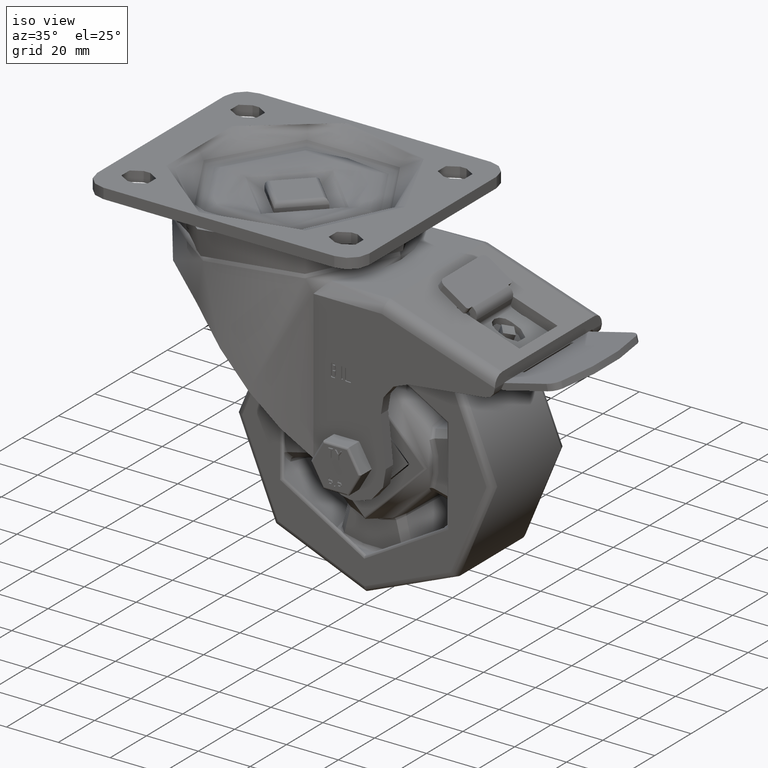
[diagram: clean part render]
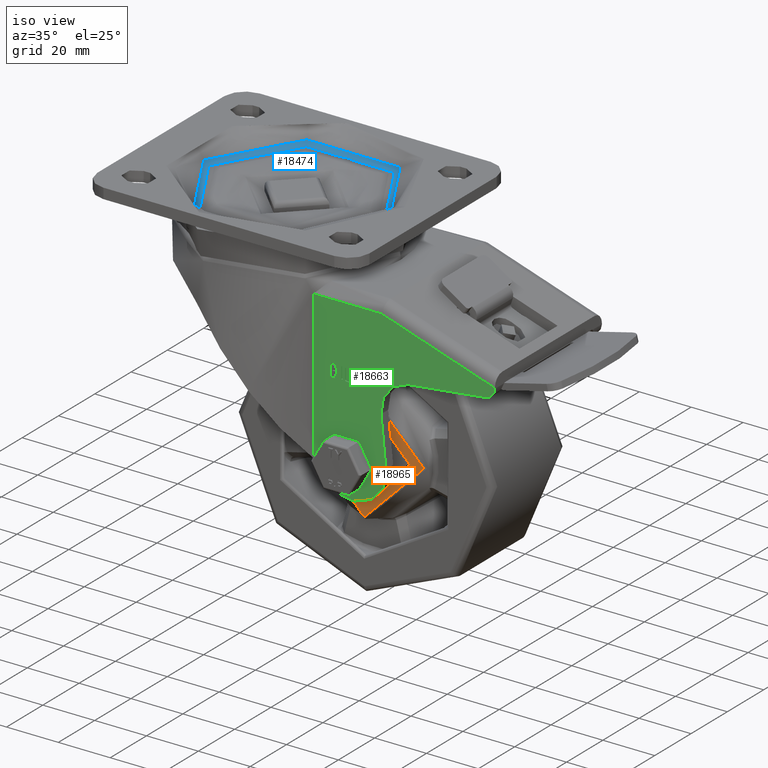
[diagram: same view with three faces highlighted in distinct colors, each labeled with its STEP entity id]
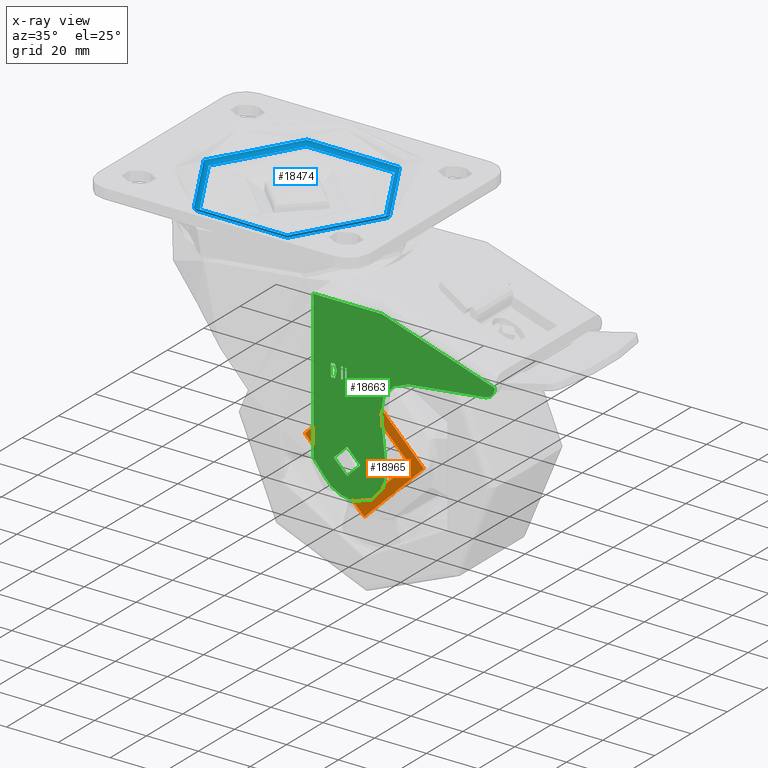
[diagram: x-ray of the same camera — body ghosted, the three highlighted faces saturated]
A machine part, iso view with three faces highlighted in distinct colors.
The next image is the same camera in x-ray (body ghosted, the three faces saturated) — at least one of them is partly hidden behind the body in this view.
Their STEP definitions:

[orange] entity #18965 — the highlighted planar face has unit normal (0, -1, 0).
#1410=FACE_BOUND('',#3794,.T.);
#1778=PLANE('',#20800);
#2616=FACE_OUTER_BOUND('',#3793,.T.);
#3793=EDGE_LOOP('',(#15254));
#3794=EDGE_LOOP('',(#15255));
#7413=CIRCLE('',#20574,17.5);
#7453=CIRCLE('',#20625,23.);
#8628=VERTEX_POINT('',#29966);
#8679=VERTEX_POINT('',#30368);
#10813=EDGE_CURVE('',#8628,#8628,#7413,.T.);
#10874=EDGE_CURVE('',#8679,#8679,#7453,.T.);
#15254=ORIENTED_EDGE('',*,*,#10874,.F.);
#15255=ORIENTED_EDGE('',*,*,#10813,.T.);
#18965=ADVANCED_FACE('',(#2616,#1410),#1778,.T.);
#20574=AXIS2_PLACEMENT_3D('',#29967,#23790,#23791);
#20625=AXIS2_PLACEMENT_3D('',#30370,#23897,#23898);
#20800=AXIS2_PLACEMENT_3D('',#43964,#24258,#24259);
#23790=DIRECTION('center_axis',(0.,1.,0.));
#23791=DIRECTION('ref_axis',(0.,0.,1.));
#23897=DIRECTION('center_axis',(0.,1.,0.));
#23898=DIRECTION('ref_axis',(0.,0.,1.));
#24258=DIRECTION('center_axis',(0.,-1.,0.));
#24259=DIRECTION('ref_axis',(0.,0.,-1.));
#29966=CARTESIAN_POINT('',(2.14313189850787E-15,-20.,-17.5));
#29967=CARTESIAN_POINT('Origin',(0.,-20.,0.));
#30368=CARTESIAN_POINT('',(-2.81668763803891E-15,-20.,-23.));
#30370=CARTESIAN_POINT('Origin',(0.,-20.,0.));
#43964=CARTESIAN_POINT('Origin',(0.,-20.,20.75));

[blue] entity #18474 — the highlighted toroidal blend (fillet) surface has major radius 34.004 mm and minor (blend) radius 2 mm.
#2057=TOROIDAL_SURFACE('',#19893,34.0040333075852,2.);
#2125=FACE_OUTER_BOUND('',#3265,.T.);
#3265=EDGE_LOOP('',(#12634,#12635,#12636,#12637));
#7143=CIRCLE('',#19879,35.9405249806889);
#7152=CIRCLE('',#19894,2.);
#7153=CIRCLE('',#19895,34.0040333075852);
#7963=VERTEX_POINT('',#26558);
#7970=VERTEX_POINT('',#26584);
#9780=EDGE_CURVE('',#7963,#7963,#7143,.T.);
#9792=EDGE_CURVE('',#7963,#7970,#7152,.T.);
#9793=EDGE_CURVE('',#7970,#7970,#7153,.T.);
#12634=ORIENTED_EDGE('',*,*,#9780,.T.);
#12635=ORIENTED_EDGE('',*,*,#9792,.T.);
#12636=ORIENTED_EDGE('',*,*,#9793,.T.);
#12637=ORIENTED_EDGE('',*,*,#9792,.F.);
#18474=ADVANCED_FACE('',(#2125),#2057,.F.);
#19879=AXIS2_PLACEMENT_3D('',#26560,#21717,#21718);
#19893=AXIS2_PLACEMENT_3D('',#26583,#21748,#21749);
#19894=AXIS2_PLACEMENT_3D('',#26585,#21750,#21751);
#19895=AXIS2_PLACEMENT_3D('',#26586,#21752,#21753);
#21717=DIRECTION('center_axis',(0.,0.,1.));
#21718=DIRECTION('ref_axis',(1.,1.22464679914735E-16,0.));
#21748=DIRECTION('center_axis',(0.,0.,-1.));
#21749=DIRECTION('ref_axis',(-1.,0.,0.));
#21750=DIRECTION('center_axis',(1.22464679914735E-16,1.,0.));
#21751=DIRECTION('ref_axis',(1.,-1.22464679914735E-16,0.));
#21752=DIRECTION('center_axis',(0.,0.,-1.));
#21753=DIRECTION('ref_axis',(1.,1.22464679914735E-16,0.));
#26558=CARTESIAN_POINT('',(35.9405249806889,4.40144488772761E-15,-4.5));
#26560=CARTESIAN_POINT('Origin',(0.,0.,-4.5));
#26583=CARTESIAN_POINT('Origin',(0.,0.,-4.));
#26584=CARTESIAN_POINT('',(34.0040333075852,-4.16429305482342E-15,-6.));
#26585=CARTESIAN_POINT('Origin',(34.0040333075852,-4.16429305482342E-15,
-4.));
#26586=CARTESIAN_POINT('Origin',(0.,0.,-6.));

[green] entity #18663 — the highlighted planar face has unit normal (0, 1, 0).
#620=B_SPLINE_CURVE_WITH_KNOTS('',2,(#27906,#27907,#27908,#27909,#27910,
#27911),.UNSPECIFIED.,.F.,.F.,(3,1,1,1,3),(0.,1.,2.00000000000004,2.99231678487006,
3.98463356974007),.UNSPECIFIED.);
#621=B_SPLINE_CURVE_WITH_KNOTS('',2,(#27919,#27920,#27921,#27922,#27923,
#27924),.UNSPECIFIED.,.F.,.F.,(3,1,1,1,3),(0.,1.,2.,3.00850546780066,4.01701093560129),
 .UNSPECIFIED.);
#622=B_SPLINE_CURVE_WITH_KNOTS('',2,(#27928,#27929,#27930,#27931),
 .UNSPECIFIED.,.F.,.F.,(3,1,3),(0.,1.,2.),.UNSPECIFIED.);
#623=B_SPLINE_CURVE_WITH_KNOTS('',2,(#27935,#27936,#27937,#27938),
 .UNSPECIFIED.,.F.,.F.,(3,1,3),(0.,1.,2.00000000000004),.UNSPECIFIED.);
#624=B_SPLINE_CURVE_WITH_KNOTS('',2,(#27940,#27941,#27942,#27943),
 .UNSPECIFIED.,.F.,.F.,(3,1,3),(0.,1.,2.),.UNSPECIFIED.);
#625=B_SPLINE_CURVE_WITH_KNOTS('',2,(#27947,#27948,#27949,#27950,#27951,
#27952),.UNSPECIFIED.,.F.,.F.,(3,1,1,1,3),(0.,1.,2.,3.00768321513002,4.01536643025996),
 .UNSPECIFIED.);
#626=B_SPLINE_CURVE_WITH_KNOTS('',2,(#27956,#27957,#27958,#27959,#27960,
#27961,#27962,#27963),.UNSPECIFIED.,.F.,.F.,(3,1,1,1,1,1,3),(0.,1.,1.99999999999999,
2.99999999999996,3.99999999999995,5.16362566215414,6.32725132430829),
 .UNSPECIFIED.);
#627=B_SPLINE_CURVE_WITH_KNOTS('',2,(#27965,#27966,#27967,#27968,#27969,
#27970,#27971,#27972),.UNSPECIFIED.,.F.,.F.,(3,1,1,1,1,1,3),(0.,1.,2.,2.76418305597581,
3.52836611195163,4.29254916792745,5.05673222390326),.UNSPECIFIED.);
#628=B_SPLINE_CURVE_WITH_KNOTS('',2,(#27976,#27977,#27978,#27979),
 .UNSPECIFIED.,.F.,.F.,(3,1,3),(0.,1.,1.99999999999992),.UNSPECIFIED.);
#629=B_SPLINE_CURVE_WITH_KNOTS('',2,(#27983,#27984,#27985,#27986),
 .UNSPECIFIED.,.F.,.F.,(3,1,3),(0.,1.,2.00000000000004),.UNSPECIFIED.);
#1391=FACE_BOUND('',#3473,.T.);
#1392=FACE_BOUND('',#3474,.T.);
#1393=FACE_BOUND('',#3475,.T.);
#1394=FACE_BOUND('',#3476,.T.);
#1658=PLANE('',#20275);
#2314=FACE_OUTER_BOUND('',#3472,.T.);
#3472=EDGE_LOOP('',(#13706,#13707,#13708,#13709,#13710,#13711,#13712,#13713,
#13714,#13715,#13716,#13717));
#3473=EDGE_LOOP('',(#13718,#13719,#13720,#13721,#13722,#13723,#13724,#13725));
#3474=EDGE_LOOP('',(#13726,#13727,#13728,#13729,#13730));
#3475=EDGE_LOOP('',(#13731,#13732,#13733,#13734,#13735,#13736,#13737));
#3476=EDGE_LOOP('',(#13738));
#4861=LINE('',#27744,#6150);
#4866=LINE('',#27798,#6155);
#4868=LINE('',#27803,#6157);
#4899=LINE('',#27883,#6188);
#4905=LINE('',#27895,#6194);
#4907=LINE('',#27899,#6196);
#4908=LINE('',#27902,#6197);
#4909=LINE('',#27903,#6198);
#4910=LINE('',#27913,#6199);
#4911=LINE('',#27915,#6200);
#4912=LINE('',#27917,#6201);
#4913=LINE('',#27926,#6202);
#4914=LINE('',#27932,#6203);
#4915=LINE('',#27945,#6204);
#4916=LINE('',#27953,#6205);
#4917=LINE('',#27974,#6206);
#4918=LINE('',#27981,#6207);
#4919=LINE('',#27987,#6208);
#6150=VECTOR('',#22739,1000.);
#6155=VECTOR('',#22760,1000.);
#6157=VECTOR('',#22766,1000.);
#6188=VECTOR('',#22843,1000.);
#6194=VECTOR('',#22857,1000.);
#6196=VECTOR('',#22861,999.999999999999);
#6197=VECTOR('',#22864,1000.);
#6198=VECTOR('',#22865,1000.);
#6199=VECTOR('',#22866,1000.);
#6200=VECTOR('',#22867,1000.);
#6201=VECTOR('',#22868,1000.);
#6202=VECTOR('',#22869,1000.);
#6203=VECTOR('',#22870,1000.);
#6204=VECTOR('',#22871,1000.);
#6205=VECTOR('',#22872,1000.);
#6206=VECTOR('',#22873,1000.);
#6207=VECTOR('',#22874,1000.);
#6208=VECTOR('',#22875,1000.);
#7289=CIRCLE('',#20205,5.1);
#7298=CIRCLE('',#20217,13.0326199722956);
#7312=CIRCLE('',#20257,12.);
#7313=CIRCLE('',#20259,4.);
#7318=CIRCLE('',#20276,13.0326199722956);
#8252=VERTEX_POINT('',#27467);
#8262=VERTEX_POINT('',#27491);
#8263=VERTEX_POINT('',#27493);
#8287=VERTEX_POINT('',#27741);
#8288=VERTEX_POINT('',#27743);
#8299=VERTEX_POINT('',#27794);
#8301=VERTEX_POINT('',#27797);
#8313=VERTEX_POINT('',#27830);
#8314=VERTEX_POINT('',#27832);
#8315=VERTEX_POINT('',#27836);
#8316=VERTEX_POINT('',#27837);
#8331=VERTEX_POINT('',#27898);
#8332=VERTEX_POINT('',#27900);
#8333=VERTEX_POINT('',#27904);
#8334=VERTEX_POINT('',#27905);
#8335=VERTEX_POINT('',#27912);
#8336=VERTEX_POINT('',#27914);
#8337=VERTEX_POINT('',#27916);
#8338=VERTEX_POINT('',#27918);
#8339=VERTEX_POINT('',#27925);
#8340=VERTEX_POINT('',#27927);
#8341=VERTEX_POINT('',#27933);
#8342=VERTEX_POINT('',#27934);
#8343=VERTEX_POINT('',#27939);
#8344=VERTEX_POINT('',#27944);
#8345=VERTEX_POINT('',#27946);
#8346=VERTEX_POINT('',#27954);
#8347=VERTEX_POINT('',#27955);
#8348=VERTEX_POINT('',#27964);
#8349=VERTEX_POINT('',#27973);
#8350=VERTEX_POINT('',#27975);
#8351=VERTEX_POINT('',#27980);
#8352=VERTEX_POINT('',#27982);
#10233=EDGE_CURVE('',#8252,#8252,#7289,.T.);
#10244=EDGE_CURVE('',#8263,#8262,#7298,.T.);
#10275=EDGE_CURVE('',#8287,#8288,#4861,.T.);
#10288=EDGE_CURVE('',#8299,#8301,#4866,.T.);
#10291=EDGE_CURVE('',#8288,#8299,#4868,.T.);
#10305=EDGE_CURVE('',#8313,#8314,#7312,.T.);
#10307=EDGE_CURVE('',#8315,#8316,#7313,.T.);
#10332=EDGE_CURVE('',#8301,#8315,#4899,.T.);
#10339=EDGE_CURVE('',#8316,#8313,#4905,.T.);
#10341=EDGE_CURVE('',#8287,#8331,#4907,.T.);
#10342=EDGE_CURVE('',#8331,#8332,#7318,.T.);
#10343=EDGE_CURVE('',#8263,#8332,#4908,.T.);
#10344=EDGE_CURVE('',#8314,#8262,#4909,.T.);
#10345=EDGE_CURVE('',#8333,#8334,#620,.T.);
#10346=EDGE_CURVE('',#8334,#8335,#4910,.T.);
#10347=EDGE_CURVE('',#8335,#8336,#4911,.T.);
#10348=EDGE_CURVE('',#8336,#8337,#4912,.T.);
#10349=EDGE_CURVE('',#8337,#8338,#621,.T.);
#10350=EDGE_CURVE('',#8338,#8339,#4913,.T.);
#10351=EDGE_CURVE('',#8339,#8340,#622,.T.);
#10352=EDGE_CURVE('',#8340,#8333,#4914,.T.);
#10353=EDGE_CURVE('',#8341,#8342,#623,.T.);
#10354=EDGE_CURVE('',#8342,#8343,#624,.T.);
#10355=EDGE_CURVE('',#8343,#8344,#4915,.T.);
#10356=EDGE_CURVE('',#8344,#8345,#625,.T.);
#10357=EDGE_CURVE('',#8345,#8341,#4916,.T.);
#10358=EDGE_CURVE('',#8346,#8347,#626,.T.);
#10359=EDGE_CURVE('',#8347,#8348,#627,.T.);
#10360=EDGE_CURVE('',#8348,#8349,#4917,.T.);
#10361=EDGE_CURVE('',#8349,#8350,#628,.T.);
#10362=EDGE_CURVE('',#8350,#8351,#4918,.T.);
#10363=EDGE_CURVE('',#8351,#8352,#629,.T.);
#10364=EDGE_CURVE('',#8352,#8346,#4919,.T.);
#13706=ORIENTED_EDGE('',*,*,#10307,.F.);
#13707=ORIENTED_EDGE('',*,*,#10332,.F.);
#13708=ORIENTED_EDGE('',*,*,#10288,.F.);
#13709=ORIENTED_EDGE('',*,*,#10291,.F.);
#13710=ORIENTED_EDGE('',*,*,#10275,.F.);
#13711=ORIENTED_EDGE('',*,*,#10341,.T.);
#13712=ORIENTED_EDGE('',*,*,#10342,.T.);
#13713=ORIENTED_EDGE('',*,*,#10343,.F.);
#13714=ORIENTED_EDGE('',*,*,#10244,.T.);
#13715=ORIENTED_EDGE('',*,*,#10344,.F.);
#13716=ORIENTED_EDGE('',*,*,#10305,.F.);
#13717=ORIENTED_EDGE('',*,*,#10339,.F.);
#13718=ORIENTED_EDGE('',*,*,#10345,.T.);
#13719=ORIENTED_EDGE('',*,*,#10346,.T.);
#13720=ORIENTED_EDGE('',*,*,#10347,.T.);
#13721=ORIENTED_EDGE('',*,*,#10348,.T.);
#13722=ORIENTED_EDGE('',*,*,#10349,.T.);
#13723=ORIENTED_EDGE('',*,*,#10350,.T.);
#13724=ORIENTED_EDGE('',*,*,#10351,.T.);
#13725=ORIENTED_EDGE('',*,*,#10352,.T.);
#13726=ORIENTED_EDGE('',*,*,#10353,.T.);
#13727=ORIENTED_EDGE('',*,*,#10354,.T.);
#13728=ORIENTED_EDGE('',*,*,#10355,.T.);
#13729=ORIENTED_EDGE('',*,*,#10356,.T.);
#13730=ORIENTED_EDGE('',*,*,#10357,.T.);
#13731=ORIENTED_EDGE('',*,*,#10358,.T.);
#13732=ORIENTED_EDGE('',*,*,#10359,.T.);
#13733=ORIENTED_EDGE('',*,*,#10360,.T.);
#13734=ORIENTED_EDGE('',*,*,#10361,.T.);
#13735=ORIENTED_EDGE('',*,*,#10362,.T.);
#13736=ORIENTED_EDGE('',*,*,#10363,.T.);
#13737=ORIENTED_EDGE('',*,*,#10364,.T.);
#13738=ORIENTED_EDGE('',*,*,#10233,.T.);
#18663=ADVANCED_FACE('',(#2314,#1391,#1392,#1393,#1394),#1658,.F.);
#20205=AXIS2_PLACEMENT_3D('',#27469,#22663,#22664);
#20217=AXIS2_PLACEMENT_3D('',#27494,#22689,#22690);
#20257=AXIS2_PLACEMENT_3D('',#27833,#22793,#22794);
#20259=AXIS2_PLACEMENT_3D('',#27838,#22798,#22799);
#20275=AXIS2_PLACEMENT_3D('',#27897,#22859,#22860);
#20276=AXIS2_PLACEMENT_3D('',#27901,#22862,#22863);
#22663=DIRECTION('center_axis',(0.,1.,0.));
#22664=DIRECTION('ref_axis',(-1.,0.,0.));
#22689=DIRECTION('center_axis',(0.,-1.,0.));
#22690=DIRECTION('ref_axis',(-1.,0.,0.));
#22739=DIRECTION('',(2.89120579329468E-16,0.,1.));
#22760=DIRECTION('',(0.95087143148672,0.,-0.309586047460792));
#22766=DIRECTION('',(1.,0.,-8.16340459283203E-16));
#22793=DIRECTION('center_axis',(0.,-1.,0.));
#22794=DIRECTION('ref_axis',(-0.779590703875945,0.,0.626289337630945));
#22798=DIRECTION('center_axis',(0.,1.,0.));
#22799=DIRECTION('ref_axis',(0.74682690704559,0.,-0.665018474113854));
#22843=DIRECTION('',(0.,0.,-1.));
#22857=DIRECTION('',(-0.993307380301254,0.,-0.115500858174564));
#22859=DIRECTION('center_axis',(0.,1.,0.));
#22860=DIRECTION('ref_axis',(0.,0.,1.));
#22861=DIRECTION('',(0.637998163497771,0.,-0.770037884375484));
#22862=DIRECTION('center_axis',(0.,-1.,0.));
#22863=DIRECTION('ref_axis',(-1.,0.,0.));
#22864=DIRECTION('',(-1.,0.,0.));
#22865=DIRECTION('',(0.101294478618815,0.,-0.994856486434773));
#22866=DIRECTION('',(0.,0.,-1.));
#22867=DIRECTION('',(1.,0.,0.));
#22868=DIRECTION('',(-0.720320213491517,0.,-0.693641687065833));
#22869=DIRECTION('',(-1.,0.,0.));
#22870=DIRECTION('',(0.,0.,1.));
#22871=DIRECTION('',(0.,0.,-1.));
#22872=DIRECTION('',(0.,0.,1.));
#22873=DIRECTION('',(-1.,0.,0.));
#22874=DIRECTION('',(0.,0.,1.));
#22875=DIRECTION('',(1.,0.,0.));
#27467=CARTESIAN_POINT('',(45.1,-29.5,-78.));
#27469=CARTESIAN_POINT('Origin',(40.,-29.5,-78.));
#27491=CARTESIAN_POINT('',(54.9655865146776,-29.5,-76.6798675548692));
#27493=CARTESIAN_POINT('',(42.9215114444637,-29.5,-91.));
#27494=CARTESIAN_POINT('Origin',(42.,-29.5,-78.));
#27741=CARTESIAN_POINT('',(27.0138853184802,-29.5,-80.3299322808854));
#27743=CARTESIAN_POINT('',(27.0138853184802,-29.5,-23.));
#27744=CARTESIAN_POINT('',(27.0138853184802,-29.5,-55.));
#27794=CARTESIAN_POINT('',(53.3652353661771,-29.5,-23.));
#27797=CARTESIAN_POINT('',(97.,-29.5,-37.2066675551982));
#27798=CARTESIAN_POINT('',(36.3028538541666,-29.5,-17.4448060193454));
#27803=CARTESIAN_POINT('',(22.875,-29.5,-23.));
#27830=CARTESIAN_POINT('',(63.6176240123528,-29.5,-44.8816716264706));
#27832=CARTESIAN_POINT('',(53.0653564732303,-29.5,-58.0168939335114));
#27833=CARTESIAN_POINT('Origin',(65.0036343104476,-29.5,-56.8013601900857));
#27836=CARTESIAN_POINT('',(97.,-29.5,-37.4381654284813));
#27837=CARTESIAN_POINT('',(93.4620034326983,-29.5,-41.4113949496863));
#27838=CARTESIAN_POINT('Origin',(93.,-29.5,-37.4381654284813));
#27883=CARTESIAN_POINT('',(97.,-29.5,-33.));
#27895=CARTESIAN_POINT('',(54.,-29.5,-46.));
#27897=CARTESIAN_POINT('Origin',(0.,-29.5,0.));
#27898=CARTESIAN_POINT('',(31.7116967704934,-29.5,-86.0000000000001));
#27899=CARTESIAN_POINT('',(-6.79573293257634,-29.5,-39.5230955231535));
#27900=CARTESIAN_POINT('',(41.0784885555363,-29.5,-91.));
#27901=CARTESIAN_POINT('Origin',(42.,-29.5,-78.));
#27902=CARTESIAN_POINT('',(50.,-29.5,-91.));
#27903=CARTESIAN_POINT('',(49.5,-29.5,-23.));
#27904=CARTESIAN_POINT('',(39.2009712979391,-29.5,-45.5455689905274));
#27905=CARTESIAN_POINT('',(39.8221678950579,-29.5,-45.5455689905274));
#27906=CARTESIAN_POINT('Ctrl Pts',(39.2009712979391,-29.5,-45.5455689905274));
#27907=CARTESIAN_POINT('Ctrl Pts',(39.2009712979391,-29.5,-45.416719015366));
#27908=CARTESIAN_POINT('Ctrl Pts',(39.3802745766277,-29.5,-45.2374157366774));
#27909=CARTESIAN_POINT('Ctrl Pts',(39.6419331707658,-29.5,-45.2374157366774));
#27910=CARTESIAN_POINT('Ctrl Pts',(39.8221678950579,-29.5,-45.4177280814365));
#27911=CARTESIAN_POINT('Ctrl Pts',(39.8221678950579,-29.5,-45.5455689905274));
#27912=CARTESIAN_POINT('',(39.8221678950579,-29.5,-49.6211868494445));
#27913=CARTESIAN_POINT('',(39.8221678950579,-29.5,-22.7727844952637));
#27914=CARTESIAN_POINT('',(41.5269462110042,-29.5,-49.6211868494445));
#27915=CARTESIAN_POINT('',(19.9110839475289,-29.5,-49.6211868494445));
#27916=CARTESIAN_POINT('',(41.4934141692754,-29.5,-49.6534769637018));
#27917=CARTESIAN_POINT('',(43.150052752102,-29.5,-48.0581953654245));
#27918=CARTESIAN_POINT('',(41.4598821275467,-29.5,-50.2374157366774));
#27919=CARTESIAN_POINT('Ctrl Pts',(41.4934141692754,-29.5,-49.6534769637018));
#27920=CARTESIAN_POINT('Ctrl Pts',(41.5902068915805,-29.5,-49.6211868494445));
#27921=CARTESIAN_POINT('Ctrl Pts',(41.7705192363395,-29.5,-49.8014991942035));
#27922=CARTESIAN_POINT('Ctrl Pts',(41.7705192363395,-29.5,-50.0581124579889));
#27923=CARTESIAN_POINT('Ctrl Pts',(41.591215957651,-29.5,-50.2374157366774));
#27924=CARTESIAN_POINT('Ctrl Pts',(41.4598821275467,-29.5,-50.2374157366774));
#27925=CARTESIAN_POINT('',(39.511608406732,-29.5,-50.2374157366774));
#27926=CARTESIAN_POINT('',(20.7299410637733,-29.5,-50.2374157366774));
#27927=CARTESIAN_POINT('',(39.2009712979391,-29.5,-49.9292624828275));
#27928=CARTESIAN_POINT('Ctrl Pts',(39.511608406732,-29.5,-50.2374157366774));
#27929=CARTESIAN_POINT('Ctrl Pts',(39.3792655105571,-29.5,-50.2374157366774));
#27930=CARTESIAN_POINT('Ctrl Pts',(39.2009712979391,-29.5,-50.0591215240595));
#27931=CARTESIAN_POINT('Ctrl Pts',(39.2009712979391,-29.5,-49.9292624828275));
#27932=CARTESIAN_POINT('',(39.2009712979391,-29.5,-24.9646312414137));
#27933=CARTESIAN_POINT('',(37.7056906223306,-29.5,-45.5455689905274));
#27934=CARTESIAN_POINT('',(38.0163277311234,-29.5,-45.2374157366774));
#27935=CARTESIAN_POINT('Ctrl Pts',(37.7056906223306,-29.5,-45.5455689905274));
#27936=CARTESIAN_POINT('Ctrl Pts',(37.7056906223306,-29.5,-45.416719015366));
#27937=CARTESIAN_POINT('Ctrl Pts',(37.8849939010191,-29.5,-45.2374157366774));
#27938=CARTESIAN_POINT('Ctrl Pts',(38.0163277311234,-29.5,-45.2374157366774));
#27939=CARTESIAN_POINT('',(38.3268872194493,-29.5,-45.5455689905274));
#27940=CARTESIAN_POINT('Ctrl Pts',(38.0163277311234,-29.5,-45.2374157366774));
#27941=CARTESIAN_POINT('Ctrl Pts',(38.1466524951572,-29.5,-45.2374157366774));
#27942=CARTESIAN_POINT('Ctrl Pts',(38.3268872194493,-29.5,-45.4177280814365));
#27943=CARTESIAN_POINT('Ctrl Pts',(38.3268872194493,-29.5,-45.5455689905274));
#27944=CARTESIAN_POINT('',(38.3268872194493,-29.5,-49.9292624828275));
#27945=CARTESIAN_POINT('',(38.3268872194493,-29.5,-22.7727844952637));
#27946=CARTESIAN_POINT('',(37.7056906223306,-29.5,-49.9292624828275));
#27947=CARTESIAN_POINT('Ctrl Pts',(38.3268872194493,-29.5,-49.9292624828275));
#27948=CARTESIAN_POINT('Ctrl Pts',(38.3268872194493,-29.5,-50.0581124579889));
#27949=CARTESIAN_POINT('Ctrl Pts',(38.1476615612278,-29.5,-50.2374157366774));
#27950=CARTESIAN_POINT('Ctrl Pts',(37.8839848349486,-29.5,-50.2374157366774));
#27951=CARTESIAN_POINT('Ctrl Pts',(37.7056906223306,-29.5,-50.0591215240595));
#27952=CARTESIAN_POINT('Ctrl Pts',(37.7056906223306,-29.5,-49.9292624828275));
#27953=CARTESIAN_POINT('',(37.7056906223306,-29.5,-24.9646312414137));
#27954=CARTESIAN_POINT('',(35.2549019983862,-29.5,-45.2374157366774));
#27955=CARTESIAN_POINT('',(36.0866829223803,-29.5,-47.4586806398071));
#27956=CARTESIAN_POINT('Ctrl Pts',(35.2549019983862,-29.5,-45.2374157366774));
#27957=CARTESIAN_POINT('Ctrl Pts',(35.5202863749386,-29.5,-45.2374157366774));
#27958=CARTESIAN_POINT('Ctrl Pts',(35.9913649889476,-29.5,-45.4393841917197));
#27959=CARTESIAN_POINT('Ctrl Pts',(36.3384060967469,-29.5,-45.786425299519));
#27960=CARTESIAN_POINT('Ctrl Pts',(36.5396759675864,-29.5,-46.2559515041886));
#27961=CARTESIAN_POINT('Ctrl Pts',(36.5396759675864,-29.5,-46.8266171773133));
#27962=CARTESIAN_POINT('Ctrl Pts',(36.2827522219332,-29.5,-47.3403870481528));
#27963=CARTESIAN_POINT('Ctrl Pts',(36.0866829223803,-29.5,-47.4586806398071));
#27964=CARTESIAN_POINT('',(35.2549019983862,-29.5,-50.2374157366774));
#27965=CARTESIAN_POINT('Ctrl Pts',(36.0866829223803,-29.5,-47.4586806398071));
#27966=CARTESIAN_POINT('Ctrl Pts',(36.3867636476659,-29.5,-47.6147753988732));
#27967=CARTESIAN_POINT('Ctrl Pts',(36.7831713724548,-29.5,-48.3010955677753));
#27968=CARTESIAN_POINT('Ctrl Pts',(36.7831713724548,-29.5,-49.0252169040893));
#27969=CARTESIAN_POINT('Ctrl Pts',(36.5430136476659,-29.5,-49.5822989954951));
#27970=CARTESIAN_POINT('Ctrl Pts',(36.1278217698716,-29.5,-49.9974908732895));
#27971=CARTESIAN_POINT('Ctrl Pts',(35.5714382626684,-29.5,-50.2374157366774));
#27972=CARTESIAN_POINT('Ctrl Pts',(35.2549019983862,-29.5,-50.2374157366774));
#27973=CARTESIAN_POINT('',(34.0371921126436,-29.5,-50.2374157366774));
#27974=CARTESIAN_POINT('',(17.6274509991931,-29.5,-50.2374157366774));
#27975=CARTESIAN_POINT('',(33.7265550038507,-29.5,-49.9292624828275));
#27976=CARTESIAN_POINT('Ctrl Pts',(34.0371921126436,-29.5,-50.2374157366774));
#27977=CARTESIAN_POINT('Ctrl Pts',(33.9048492164687,-29.5,-50.2374157366774));
#27978=CARTESIAN_POINT('Ctrl Pts',(33.7265550038507,-29.5,-50.0591215240595));
#27979=CARTESIAN_POINT('Ctrl Pts',(33.7265550038507,-29.5,-49.9292624828275));
#27980=CARTESIAN_POINT('',(33.7265550038507,-29.5,-45.5455689905274));
#27981=CARTESIAN_POINT('',(33.7265550038507,-29.5,-24.9646312414137));
#27982=CARTESIAN_POINT('',(34.0371921126436,-29.5,-45.2374157366774));
#27983=CARTESIAN_POINT('Ctrl Pts',(33.7265550038507,-29.5,-45.5455689905274));
#27984=CARTESIAN_POINT('Ctrl Pts',(33.7265550038507,-29.5,-45.416719015366));
#27985=CARTESIAN_POINT('Ctrl Pts',(33.9058582825392,-29.5,-45.2374157366774));
#27986=CARTESIAN_POINT('Ctrl Pts',(34.0371921126436,-29.5,-45.2374157366774));
#27987=CARTESIAN_POINT('',(17.0185960563218,-29.5,-45.2374157366774));